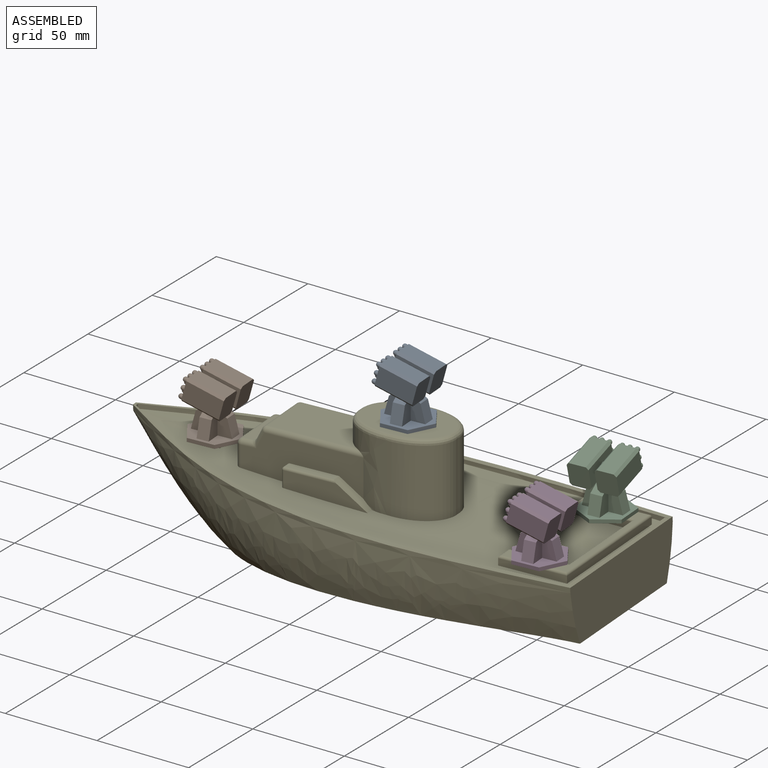
[diagram: assembled view]
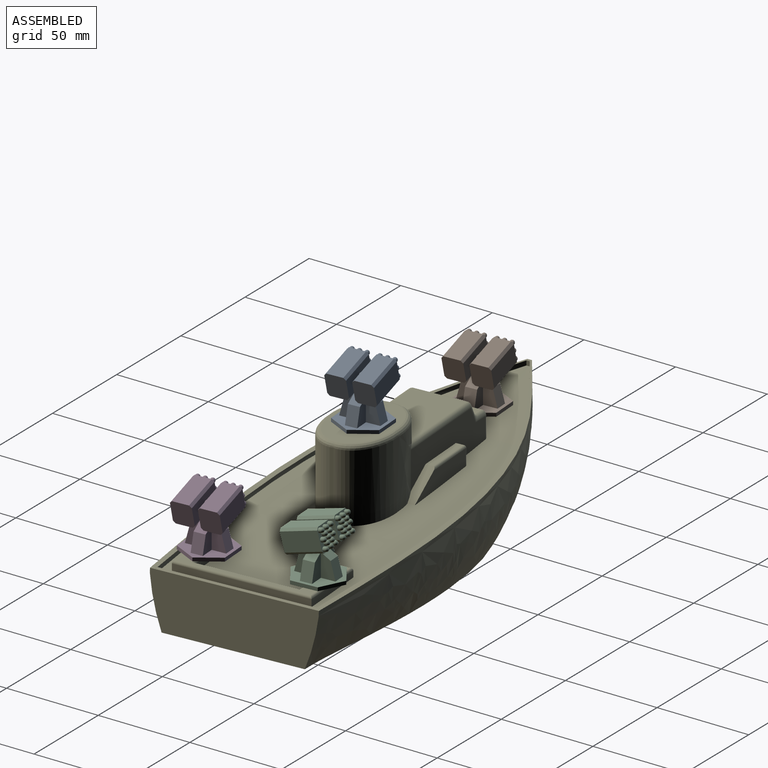
[diagram: assembled view, second angle]
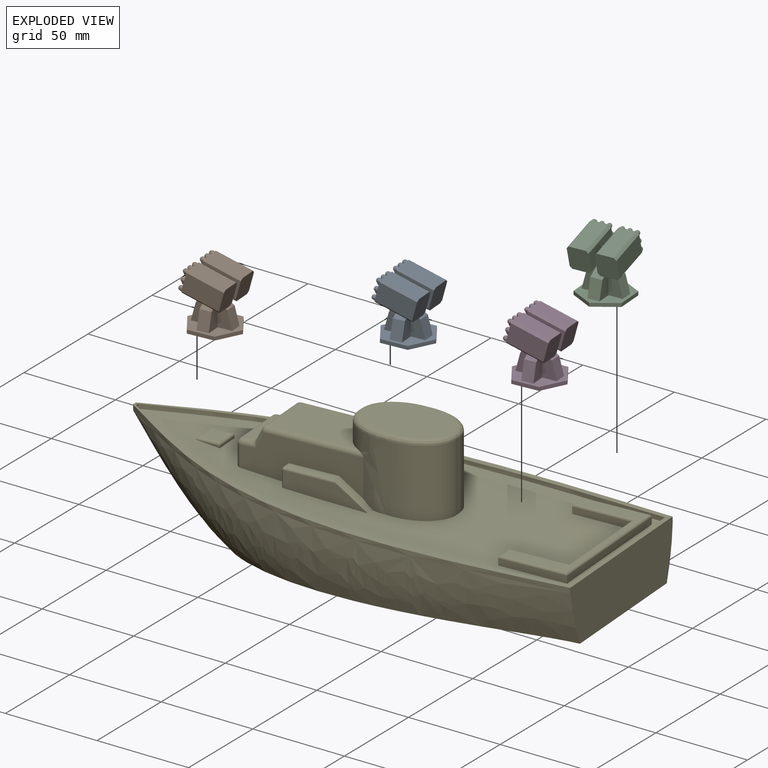
[diagram: exploded view]
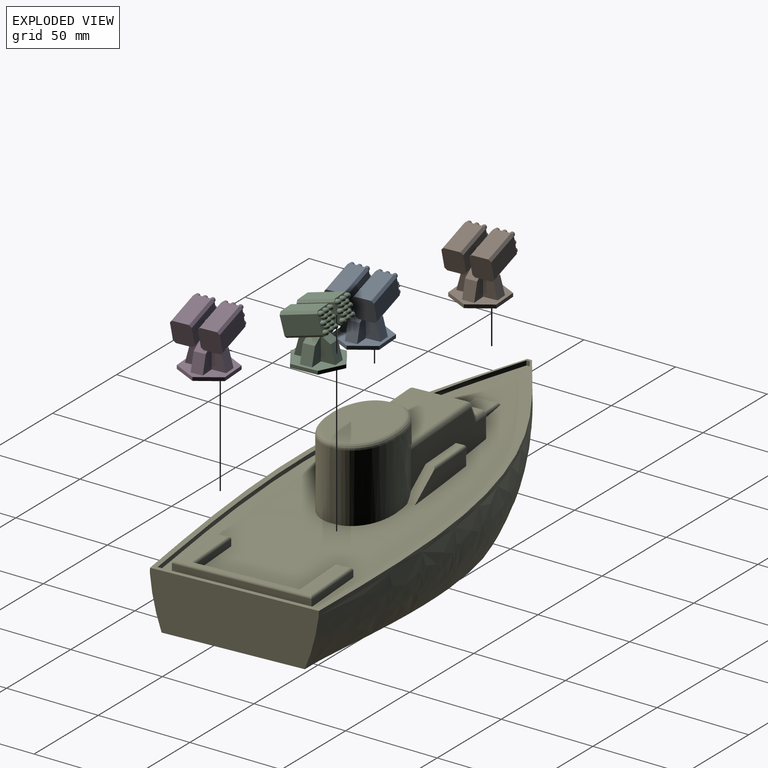
[diagram: exploded view, second angle]
ASSEMBLY  parts=5 mates=4
PART A: 114 faces, bbox 26x29x31.3 mm
  f0: plane 3.18x0.43mm, normal (0,0,1), area 0.9mm2, adj f31,f33
  f1: plane 5.5x1.59mm, normal (0,0,1), area 6.2mm2, adj f31,f36
  f2: plane 5.5x1.59mm, normal (0,0,1), area 6.2mm2, adj f31,f34
  f3: plane 3.18x3.18mm, normal (0,0,1), area 2.2mm2, adj f25,f28,f31
  f4: plane 3.18x3.18mm, normal (0,0,1), area 2.2mm2, adj f24,f28,f31
  f5: plane 3.18x3.18mm, normal (0,0,1), area 2.2mm2, adj f24,f30,f31
  f6: plane 3.18x3.18mm, normal (0,0,1), area 2.2mm2, adj f25,f30,f31
  f7: plane 12.7x7.62mm, normal (-1,0,0), area 68.5mm2, adj f18,f19,f29,f30
  f8: plane 12.7x7.62mm, normal (1,0,0), area 68.5mm2, adj f18,f20,f29,f30
  f9: plane 12.7x7.62mm, normal (1,0,0), area 68.5mm2, adj f18,f21,f27,f28
  f10: plane 12.7x7.62mm, normal (-1,0,0), area 68.5mm2, adj f18,f22,f27,f28
  f11: plane 12.57x7.26mm, normal (-0.5,0.87,0), area 27.7mm2, adj f12,f16,f17,f18
  f12: plane 14.52x1.91mm, normal (-1,0,0), area 27.7mm2, adj f11,f13,f17,f18
  f13: plane 12.57x7.26mm, normal (-0.5,-0.87,0), area 27.7mm2, adj f12,f14,f17,f18
  f14: plane 12.57x7.26mm, normal (0.5,-0.87,0), area 27.7mm2, adj f13,f15,f17,f18
  f15: plane 14.52x1.91mm, normal (1,0,0), area 27.7mm2, adj f14,f16,f17,f18
  f16: plane 12.57x7.26mm, normal (0.5,0.87,0), area 27.7mm2, adj f11,f15,f17,f18
  f17: plane 29.04x25.15mm, normal (0,0,-1), area 547.6mm2, adj f11,f12,f13,f14,f15,f16
  f18: plane 29.04x25.15mm, normal (0,0,1), area 313.7mm2, adj f7,f8,f9,f10,f11,f12,f13,f14
  f19: plane 12.7x7.62mm, normal (0,-1,0), area 68.5mm2, adj f7,f18,f23,f24
  f20: plane 12.7x7.62mm, normal (0,-1,0), area 68.5mm2, adj f8,f18,f25,f26
  f21: plane 12.7x7.62mm, normal (0,1,0), area 68.5mm2, adj f9,f18,f25,f26
  f22: plane 12.7x7.62mm, normal (0,1,0), area 68.5mm2, adj f10,f18,f23,f24
  f23: plane 9.53x6.35mm, normal (-0.97,0,0.26), area 62.6mm2, adj f18,f19,f22,f24
  f24: plane 6.35x5.08mm, normal (-0.53,0,0.85), area 38mm2, adj f4,f5,f19,f22,f23
  f25: plane 6.35x5.08mm, normal (0.53,0,0.85), area 38mm2, adj f3,f6,f20,f21,f26
  f26: plane 9.53x6.35mm, normal (0.97,0,0.26), area 62.6mm2, adj f18,f20,f21,f25
  f27: plane 9.53x6.35mm, normal (0,0.97,0.26), area 62.6mm2, adj f9,f10,f18,f28
  f28: plane 6.35x5.08mm, normal (0,0.53,0.85), area 38mm2, adj f3,f4,f9,f10,f27
  f29: plane 9.53x6.35mm, normal (0,-0.97,0.26), area 62.6mm2, adj f7,f8,f18,f30
  f30: plane 6.35x5.08mm, normal (0,-0.53,0.85), area 38mm2, adj f5,f6,f7,f8,f29
  f31: cylinder r=3.17mm len=6.35mm, axis (0,0,-1), area 12.7mm2, adj f0,f1,f2,f3,f4,f5,f6,f32
  f32: plane 3.18x0.43mm, normal (0,0,1), area 0.9mm2, adj f31,f35
  f33: plane 6.99x5.72mm, normal (0,1,0), area 23.8mm2, adj f0,f34,f36,f38,f41,f42,f72,f77
  f34: plane 5.5x1.86mm, normal (-1,0,0), area 6.2mm2, adj f2,f33,f35,f41
  f35: plane 6.99x5.72mm, normal (0,-1,0), area 23.8mm2, adj f32,f34,f36,f39,f41,f42,f74,f77
  f36: plane 5.5x1.86mm, normal (1,0,0), area 6.2mm2, adj f1,f33,f35,f80
  f37: plane 3.18x1.69mm, normal (0,0,1), area 5.4mm2, adj f38,f39,f42,f77
  f38: plane 3.18x1.91mm, normal (0,0.71,0.71), area 8.6mm2, adj f33,f37,f42,f77
  f39: plane 3.18x1.91mm, normal (0,-0.71,0.71), area 8.6mm2, adj f35,f37,f42,f77
  f40: plane 22.25x15.05mm, normal (-1,0,0), area 206.5mm2, adj f44,f45,f73,f75
  f41: plane 19.63x10.16mm, normal (0,-0.26,-0.97), area 187.9mm2, adj f33,f34,f35,f44,f45,f72,f73,f74
  f42: plane 22.25x15.05mm, normal (1,0,0), area 174.6mm2, adj f33,f35,f37,f38,f39,f44,f45,f72
  f43: plane 19.63x8.89mm, normal (0,0.26,0.97), area 180.6mm2, adj f44,f45,f75,f76
  f44: plane 12.27x11.43mm, normal (0,0.97,-0.26), area 141.9mm2, adj f40,f41,f42,f43,f72,f73,f75,f76
  f45: plane 12.27x11.43mm, normal (0,-0.97,0.26), area 76.1mm2, adj f40,f41,f42,f43,f46,f47,f48,f49
  f46: cylinder r=1.27mm len=2.78mm, axis (0,0.97,-0.26), area 10.1mm2, adj f45,f71
  f47: cylinder r=1.27mm len=2.78mm, axis (0,0.97,-0.26), area 10.1mm2, adj f45,f66
  f48: cylinder r=1.27mm len=2.78mm, axis (0,0.97,-0.26), area 10.1mm2, adj f45,f61
  f49: cylinder r=1.27mm len=2.78mm, axis (0,0.97,-0.26), area 10.1mm2, adj f45,f70
  f50: cylinder r=1.27mm len=2.78mm, axis (0,0.97,-0.26), area 10.1mm2, adj f45,f65
  f51: cylinder r=1.27mm len=2.78mm, axis (0,0.97,-0.26), area 10.1mm2, adj f45,f60
  f52: cylinder r=1.27mm len=2.78mm, axis (0,0.97,-0.26), area 10.1mm2, adj f45,f69
  f53: cylinder r=1.27mm len=2.78mm, axis (0,0.97,-0.26), area 10.1mm2, adj f45,f64
  f54: cylinder r=1.27mm len=2.78mm, axis (0,0.97,-0.26), area 10.1mm2, adj f45,f59
  f55: cylinder r=1.27mm len=2.78mm, axis (0,0.97,-0.26), area 10.1mm2, adj f45,f67
  f56: cylinder r=1.27mm len=2.78mm, axis (0,0.97,-0.26), area 10.1mm2, adj f45,f68
  f57: cylinder r=1.27mm len=2.78mm, axis (0,0.97,-0.26), area 10.1mm2, adj f45,f62
  f58: cylinder r=1.27mm len=2.78mm, axis (0,0.97,-0.26), area 10.1mm2, adj f45,f63
  f59: sphere r=1.27mm, area 10.1mm2, adj f54
  f60: sphere r=1.27mm, area 10.1mm2, adj f51
  f61: sphere r=1.27mm, area 10.1mm2, adj f48
  f62: sphere r=1.27mm, area 10.1mm2, adj f57
  f63: sphere r=1.27mm, area 10.1mm2, adj f58
  f64: sphere r=1.27mm, area 10.1mm2, adj f53
  f65: sphere r=1.27mm, area 10.1mm2, adj f50
  f66: sphere r=1.27mm, area 10.1mm2, adj f47
  f67: sphere r=1.27mm, area 10.1mm2, adj f55
  f68: sphere r=1.27mm, area 10.1mm2, adj f56
  f69: sphere r=1.27mm, area 10.1mm2, adj f52
  f70: sphere r=1.27mm, area 10.1mm2, adj f49
  f71: sphere r=1.27mm, area 10.1mm2, adj f46
  f72: plane 7.05x3.11mm, normal (0.71,-0.18,-0.68), area 12.8mm2, adj f33,f41,f42,f44
  f73: plane 19.96x6.46mm, normal (-0.71,-0.18,-0.68), area 36.5mm2, adj f40,f41,f44,f45
  f74: plane 7.41x3.2mm, normal (0.71,-0.18,-0.68), area 13.5mm2, adj f35,f41,f42,f45
  f75: plane 19.96x6.46mm, normal (-0.71,0.18,0.68), area 36.5mm2, adj f40,f43,f44,f45
  f76: plane 19.96x6.46mm, normal (0.71,0.18,0.68), area 36.5mm2, adj f42,f43,f44,f45
  f77: plane 22.25x15.05mm, normal (-1,0,0), area 174.6mm2, adj f33,f35,f37,f38,f39,f81,f82,f109
  f78: plane 22.25x15.05mm, normal (1,0,0), area 206.5mm2, adj f81,f82,f110,f112
  f79: plane 19.63x8.89mm, normal (0,0.26,0.97), area 180.6mm2, adj f81,f82,f112,f113
  f80: plane 19.63x10.16mm, normal (0,-0.26,-0.97), area 187.9mm2, adj f33,f35,f36,f81,f82,f109,f110,f111
  f81: plane 12.27x11.43mm, normal (0,0.97,-0.26), area 141.9mm2, adj f77,f78,f79,f80,f109,f110,f112,f113
  f82: plane 12.27x11.43mm, normal (0,-0.97,0.26), area 76.1mm2, adj f77,f78,f79,f80,f83,f84,f85,f86
  f83: cylinder r=1.27mm len=2.78mm, axis (0,0.97,-0.26), area 10.1mm2, adj f82,f108
  f84: cylinder r=1.27mm len=2.78mm, axis (0,0.97,-0.26), area 10.1mm2, adj f82,f103
  f85: cylinder r=1.27mm len=2.78mm, axis (0,0.97,-0.26), area 10.1mm2, adj f82,f98
  f86: cylinder r=1.27mm len=2.78mm, axis (0,0.97,-0.26), area 10.1mm2, adj f82,f107
  f87: cylinder r=1.27mm len=2.78mm, axis (0,0.97,-0.26), area 10.1mm2, adj f82,f102
  f88: cylinder r=1.27mm len=2.78mm, axis (0,0.97,-0.26), area 10.1mm2, adj f82,f97
  f89: cylinder r=1.27mm len=2.78mm, axis (0,0.97,-0.26), area 10.1mm2, adj f82,f106
  f90: cylinder r=1.27mm len=2.78mm, axis (0,0.97,-0.26), area 10.1mm2, adj f82,f101
  f91: cylinder r=1.27mm len=2.78mm, axis (0,0.97,-0.26), area 10.1mm2, adj f82,f96
  f92: cylinder r=1.27mm len=2.78mm, axis (0,0.97,-0.26), area 10.1mm2, adj f82,f104
  f93: cylinder r=1.27mm len=2.78mm, axis (0,0.97,-0.26), area 10.1mm2, adj f82,f105
  f94: cylinder r=1.27mm len=2.78mm, axis (0,0.97,-0.26), area 10.1mm2, adj f82,f99
  f95: cylinder r=1.27mm len=2.78mm, axis (0,0.97,-0.26), area 10.1mm2, adj f82,f100
  f96: sphere r=1.27mm, area 10.1mm2, adj f91
  f97: sphere r=1.27mm, area 10.1mm2, adj f88
  f98: sphere r=1.27mm, area 10.1mm2, adj f85
  f99: sphere r=1.27mm, area 10.1mm2, adj f94
  f100: sphere r=1.27mm, area 10.1mm2, adj f95
  f101: sphere r=1.27mm, area 10.1mm2, adj f90
  f102: sphere r=1.27mm, area 10.1mm2, adj f87
  f103: sphere r=1.27mm, area 10.1mm2, adj f84
  f104: sphere r=1.27mm, area 10.1mm2, adj f92
  f105: sphere r=1.27mm, area 10.1mm2, adj f93
  f106: sphere r=1.27mm, area 10.1mm2, adj f89
  f107: sphere r=1.27mm, area 10.1mm2, adj f86
  f108: sphere r=1.27mm, area 10.1mm2, adj f83
  f109: plane 7.05x3.11mm, normal (-0.71,-0.18,-0.68), area 12.8mm2, adj f33,f77,f80,f81
  f110: plane 19.96x6.46mm, normal (0.71,-0.18,-0.68), area 36.5mm2, adj f78,f80,f81,f82
  f111: plane 7.41x3.2mm, normal (-0.71,-0.18,-0.68), area 13.5mm2, adj f35,f77,f80,f82
  f112: plane 19.96x6.46mm, normal (0.71,0.18,0.68), area 36.5mm2, adj f78,f79,f81,f82
  f113: plane 19.96x6.46mm, normal (-0.71,0.18,0.68), area 36.5mm2, adj f77,f79,f81,f82
PART B: same geometry as A
PART C: same geometry as A
PART D: same geometry as A
PART E: 97 faces, bbox 254.8x129.4x123.6 mm
  f0: bspline ~254x53.73mm, area 6700.4mm2, adj f1,f7,f8,f9,f10,f47,f48,f54
  f1: bspline ~14.39x1.31mm, area 11mm2, adj f0,f2,f6,f7
  f2: plane 10.28x10.07mm, normal (0.03,0,1), area 103.5mm2, adj f1,f3,f4,f6,f7
  f3: cylinder r=1.27mm len=12.82mm, axis (0,1,0), area 23mm2, adj f2,f4,f7,f9
  f4: cylinder r=1.27mm len=12.65mm, axis (1,0,-0.03), area 23.3mm2, adj f2,f3,f5,f6,f96
  f5: plane 11.91x1.79mm, normal (0,1,0), area 6.9mm2, adj f4,f9,f96
  f6: bspline ~14.39x1.31mm, area 11mm2, adj f1,f2,f4,f96
  f7: cylinder r=1.27mm len=12.65mm, axis (1,0,-0.03), area 23.3mm2, adj f0,f1,f2,f3,f8
  f8: plane 11.91x1.79mm, normal (0,-1,0), area 6.9mm2, adj f0,f7,f9
  f9: plane 12.82x1.15mm, normal (1,0,-0.03), area 14.8mm2, adj f0,f3,f5,f8,f96
  f10: plane 28.13x11.2mm, normal (-1,0,0.03), area 315.4mm2, adj f0,f11,f46,f47,f96
  f11: cylinder r=2.54mm len=11.49mm, axis (-0.03,0,-1), area 45.1mm2, adj f10,f12,f45,f96
  f12: plane 65.52x22.97mm, normal (0,1,0), area 953.5mm2, adj f11,f13,f27,f28,f34,f35,f36,f37
  f13: cylinder r=2.54mm len=9.7mm, axis (0.47,0,0.88), area 32.4mm2, adj f12,f14,f25,f26
  f14: sphere r=2.54mm, area 7.2mm2, adj f13,f15,f44
  f15: cylinder r=2.54mm len=28.13mm, axis (0,-1,0), area 79.7mm2, adj f14,f16,f18,f25
  f16: plane 46.72x28.13mm, normal (0.03,0,1), area 1160.6mm2, adj f15,f17,f37,f44,f58
  f17: cylinder r=2.54mm len=51.72mm, axis (1,0,-0.03), area 196.3mm2, adj f16,f18,f48,f58
  f18: sphere r=2.54mm, area 7.2mm2, adj f15,f17,f19
  f19: cylinder r=2.54mm len=9.7mm, axis (0.47,0,0.88), area 32.4mm2, adj f18,f20,f25,f48
  f20: bspline ~3.88x3.05mm, area 4.5mm2, adj f19,f21,f24
  f21: cylinder r=2.54mm len=8.32mm, axis (1,0,0), area 27.1mm2, adj f20,f22,f23,f48
  f22: sphere r=2.54mm, area 17.4mm2, adj f21,f46,f47
  f23: plane 28.13x5.27mm, normal (0,0,1), area 148.4mm2, adj f21,f24,f27,f46
  f24: cylinder r=2.54mm len=28.13mm, axis (0,1,0), area 77.2mm2, adj f20,f23,f25,f26
  f25: plane 28.13x5.82mm, normal (-0.88,0,0.47), area 185.5mm2, adj f13,f15,f19,f24
  f26: bspline ~3.88x3.05mm, area 4.5mm2, adj f13,f24,f27
  f27: cylinder r=2.54mm len=8.32mm, axis (1,0,0), area 27.1mm2, adj f12,f23,f26,f45
  f28: plane 8.73x4.13mm, normal (-1,0,0.03), area 36.1mm2, adj f12,f29,f34,f96
  f29: cylinder r=1.27mm len=8.84mm, axis (-0.03,0,-1), area 17.5mm2, adj f28,f30,f33,f96
  f30: plane 43.86x12.05mm, normal (0,1,0), area 344.8mm2, adj f29,f31,f32,f36,f96
  f31: plane 4.06x1.05mm, normal (0,0,-1), area 4.2mm2, adj f30,f36,f37,f96
  f32: cylinder r=1.27mm len=27.78mm, axis (-1,0,0.03), area 53.4mm2, adj f30,f33,f35,f36
  f33: sphere r=1.27mm, area 3.5mm2, adj f29,f32,f34
  f34: cylinder r=1.27mm len=4.13mm, axis (0,-1,0), area 8.2mm2, adj f12,f28,f33,f35
  f35: plane 25.78x4.13mm, normal (0.03,0,1), area 106.5mm2, adj f12,f32,f34,f36
  f36: plane 18.55x13.24mm, normal (0.57,0,0.82), area 110.5mm2, adj f12,f30,f31,f32,f35,f37
  f37: extruded ~37.59x27.29mm, area 722.1mm2, adj f12,f16,f31,f36,f38,f43,f44,f58
  f38: bspline ~29.23x20.63mm, area 138.4mm2, adj f37,f39,f41,f42
  f39: plane 46.95x32.41mm, normal (0.03,0,1), area 1244.2mm2, adj f38,f40,f41,f42
  f40: bspline ~29.23x20.63mm, area 138.4mm2, adj f39,f41,f42,f59
  f41: bspline ~29.23x20.63mm, area 138.4mm2, adj f38,f39,f40,f58
  f42: bspline ~29.23x20.63mm, area 138.4mm2, adj f38,f39,f40,f43
  f43: extruded ~38.15x27.31mm, area 1333.5mm2, adj f37,f42,f59,f96
  f44: cylinder r=2.54mm len=51.72mm, axis (1,0,-0.03), area 196.3mm2, adj f12,f14,f16,f37
  f45: sphere r=2.54mm, area 17.4mm2, adj f11,f27,f46
  f46: cylinder r=2.54mm len=28.13mm, axis (0,1,0), area 109.8mm2, adj f10,f22,f23,f45
  f47: cylinder r=2.54mm len=11.49mm, axis (-0.03,0,-1), area 45.1mm2, adj f0,f10,f22,f48
  f48: plane 65.52x22.97mm, normal (0,-1,0), area 953.5mm2, adj f0,f17,f19,f21,f47,f49,f52,f53
  f49: plane 18.55x13.24mm, normal (0.57,0,0.82), area 110.5mm2, adj f48,f50,f52,f56,f57,f58
  f50: cylinder r=1.27mm len=27.78mm, axis (-1,0,0.03), area 53.4mm2, adj f49,f51,f52,f56
  f51: sphere r=1.27mm, area 4.4mm2, adj f50,f53,f55
  f52: plane 25.78x4.13mm, normal (0.03,0,1), area 106.5mm2, adj f48,f49,f50,f53
  f53: cylinder r=1.27mm len=4.13mm, axis (0,1,0), area 8.2mm2, adj f48,f51,f52,f54
  f54: plane 8.73x4.13mm, normal (-1,0,0.03), area 36.1mm2, adj f0,f48,f53,f55
  f55: cylinder r=1.27mm len=8.84mm, axis (-0.03,0,-1), area 17.5mm2, adj f0,f51,f54,f56
  f56: plane 43.86x12.05mm, normal (0,-1,0), area 344.8mm2, adj f0,f49,f50,f55,f57
  f57: plane 4.06x1.05mm, normal (0,0,-1), area 4.2mm2, adj f0,f49,f56,f58
  f58: extruded ~37.59x27.29mm, area 722.1mm2, adj f0,f16,f17,f37,f41,f48,f49,f57
  f59: extruded ~38.15x27.31mm, area 1333.5mm2, adj f0,f40,f43,f58
  f60: plane 54.57x3.74mm, normal (-1,0,0.03), area 204.3mm2, adj f0,f61,f72,f73,f96
  f61: plane 31.54x4.95mm, normal (0,-1,0), area 113.9mm2, adj f60,f62,f71,f96
  f62: plane 9.24x3.52mm, normal (-1,0,0.03), area 32.5mm2, adj f61,f63,f70,f96
  f63: plane 36.3x5.22mm, normal (0,1,0), area 131.5mm2, adj f62,f64,f76,f96
  f64: cylinder r=1.27mm len=36.03mm, axis (-1,0,0.03), area 69.3mm2, adj f63,f65,f69,f70
  f65: plane 70.51x33.45mm, normal (0.03,0,1), area 571.5mm2, adj f64,f66,f67,f68,f69,f70,f71,f72
  f66: cylinder r=1.27mm len=36.03mm, axis (-1,0,0.03), area 69.3mm2, adj f65,f67,f69,f75
  f67: cylinder r=1.27mm len=9.24mm, axis (0,1,0), area 15.9mm2, adj f65,f66,f68,f74
  f68: cylinder r=1.27mm len=32.61mm, axis (1,0,-0.03), area 62.5mm2, adj f65,f67,f72,f73
  f69: cylinder r=1.27mm len=73.05mm, axis (0,-1,0), area 143.2mm2, adj f64,f65,f66,f76
  f70: cylinder r=1.27mm len=9.24mm, axis (0,-1,0), area 15.9mm2, adj f62,f64,f65,f71
  f71: cylinder r=1.27mm len=32.61mm, axis (1,0,-0.03), area 62.5mm2, adj f61,f65,f70,f72
  f72: cylinder r=1.27mm len=57.11mm, axis (0,1,0), area 111.4mm2, adj f60,f65,f68,f71
  f73: plane 31.54x4.95mm, normal (0,1,0), area 113.9mm2, adj f0,f60,f68,f74
  f74: plane 9.24x3.52mm, normal (-1,0,0.03), area 32.5mm2, adj f0,f67,f73,f75
  f75: plane 36.3x5.22mm, normal (0,-1,0), area 131.5mm2, adj f0,f66,f74,f76
  f76: plane 73.05x3.77mm, normal (1,0,-0.03), area 275.5mm2, adj f0,f63,f69,f75,f96
  f77: plane 83.36x2.37mm, normal (-1,0,0), area 197.6mm2, adj f0,f78,f93,f94,f96
  f78: bspline ~254x53.62mm, area 597.5mm2, adj f77,f79,f92,f93,f95,f96
  f79: plane 4.41x1.54mm, normal (0.16,0,0.99), area 4.8mm2, adj f78,f80,f89,f90,f91,f92,f94,f95
  f80: plane 3.9x2.48mm, normal (-1,0,0), area 8.9mm2, adj f79,f81,f82,f85,f86,f87,f88,f89
  f81: cylinder r=1.24mm len=0.72mm, axis (-1,0,0), area 0mm2, adj f80,f82
  f82: bspline ~254x98.14mm, area 8816.7mm2, adj f80,f81,f83,f84,f85,f91
  f83: plane 88.31x30mm, normal (1,0,0), area 2496.8mm2, adj f82,f84,f87,f89,f90,f91,f92,f93
  f84: plane 205.53x88.55mm, normal (0,0,-1), area 15639mm2, adj f82,f83,f85,f86,f87
  f85: bspline ~52.9x49.98mm, area 238mm2, adj f80,f82,f84,f86
  f86: bspline ~52.9x49.98mm, area 238mm2, adj f80,f84,f85,f87
  f87: bspline ~254x98.14mm, area 8816.7mm2, adj f80,f83,f84,f86,f88,f89
  f88: cylinder r=1.24mm len=0.72mm, axis (-1,0,0), area 0mm2, adj f80,f87
  f89: bspline ~254x56.17mm, area 664mm2, adj f79,f80,f83,f87,f92
  f90: bspline ~254x57.3mm, area 688.5mm2, adj f79,f83,f91,f94
  f91: bspline ~254x56.17mm, area 664mm2, adj f79,f80,f82,f83,f90
  f92: bspline ~254x57.3mm, area 688.5mm2, adj f78,f79,f83,f89
  f93: plane 83.36x2.54mm, normal (0,0,1), area 211.2mm2, adj f77,f78,f83,f94
  f94: bspline ~254x53.62mm, area 597.5mm2, adj f0,f77,f79,f90,f93,f95
  f95: plane 2.49x1.74mm, normal (1,0,0), area 4.3mm2, adj f0,f78,f79,f94,f96
  f96: bspline ~254x53.73mm, area 6700.4mm2, adj f0,f4,f5,f6,f9,f10,f11,f12
PLACE A rot(axis=(0,0,-1),86.2deg) t=(-82.16,-82.73,55.91)mm
PLACE B rot(axis=(0,0,-1),86.2deg) t=(-182.98,-89.38,24.16)mm
PLACE C rot(axis=(0,0,-1),176.2deg) t=(1.74,-48.57,20.35)mm
PLACE D rot(axis=(0,0,-1),86.2deg) t=(5.5,-105.56,20.35)mm
PLACE E rot(axis=(0.02,-0.47,0.88),4.3deg) t=(-224.81,-92.14,20.18)mm
MATE fastened D.f31 <-> E.f65  axis (0,0,-1) through (5.5,-105.56,18.44)mm
MATE fastened E.f65 <-> C.f31  axis (0,0,1) through (1.74,-48.57,18.44)mm
MATE fastened B.f31 <-> E.f2  axis (0,0,-1) through (-182.98,-89.38,22.25)mm
MATE fastened E.f39 <-> A.f31  axis (0,0,1) through (-82.16,-82.73,54)mm
